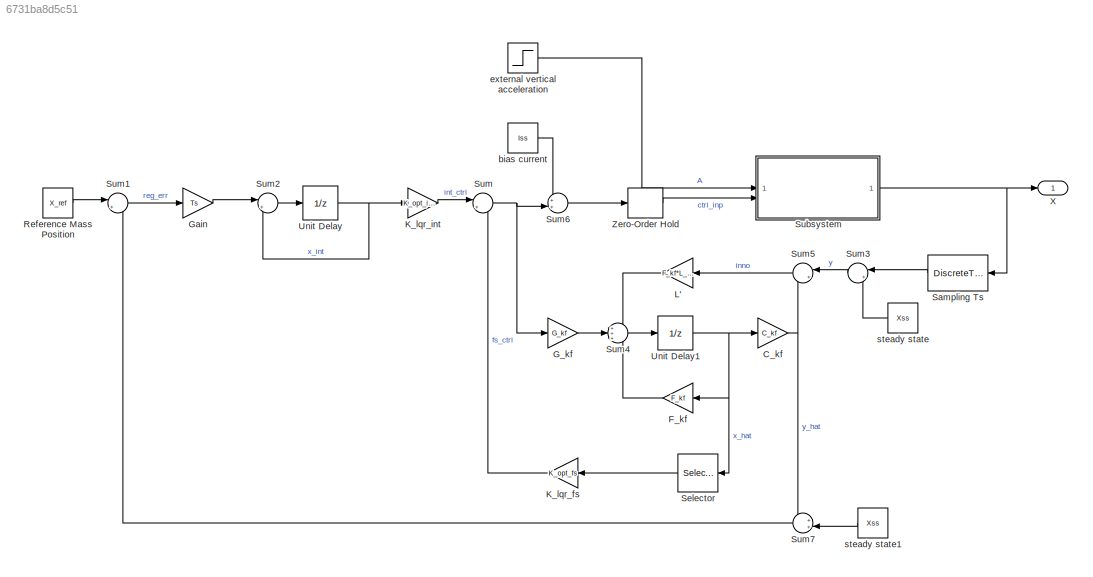
MODEL slx_6731ba8d5c51
KIND model
CONFIG AbsTol = auto
CONFIG EnableMultiTasking = off
CONFIG FixedStep = STEP_SIZE
CONFIG MaxStep = auto
CONFIG MinStep = auto
CONFIG RelTol = 1e-3
CONFIG SampleTimeConstraint = Unconstrained
CONFIG SolverName = ode4
CONFIG StartTime = 0.0
CONFIG StopTime = SIM_TIME
BLOCK [Gain] C_kf
  Gain = C_kf
  Multiplication = Matrix(K*u) (u vector)
BLOCK [Gain] F_kf
  Gain = F_kf
  Multiplication = Matrix(K*u) (u vector)
BLOCK [Gain] G_kf
  Gain = G_kf
  Multiplication = Matrix(K*u) (u vector)
BLOCK [Gain] Gain
  Gain = Ts
BLOCK [Gain] K_lqr_fs
  Gain = K_opt_fs
  Multiplication = Matrix(K*u) (u vector)
BLOCK [Gain] K_lqr_int
  Gain = K_opt_integral
  Multiplication = Matrix(K*u) (u vector)
BLOCK [Gain] L'
  Gain = F_kf*L_KF
  Multiplication = Matrix(K*u) (u vector)
BLOCK [Constant] Reference Mass Position
  Value = X_ref
BLOCK [DiscreteTransferFcn] Sampling Ts
  Denominator = [1]
  InputPortMap = u0
  SampleTime = Ts
BLOCK [Selector] Selector
  IndexOptions = Index vector (dialog)
  Indices = [1 2]
  InputPortWidth = 3
  OutputSizes = 1
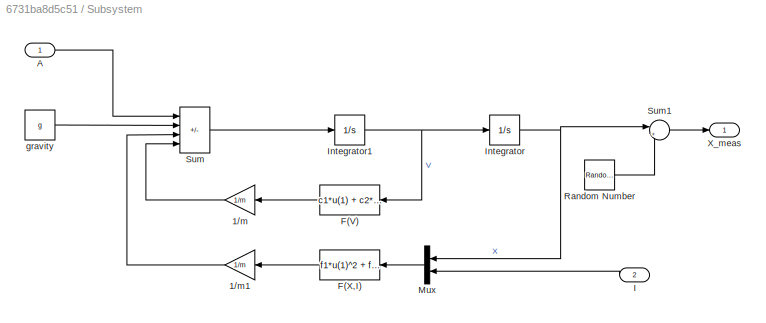
BLOCK [SubSystem] Subsystem
BLOCK [Gain] Subsystem/1//m
  Gain = 1/m
BLOCK [Gain] Subsystem/1//m1
  Gain = 1/m
BLOCK [Inport] Subsystem/A
BLOCK [Fcn] Subsystem/F(V)
  Expr = c1*u(1) + c2*u(1)*abs(u(1))
BLOCK [Fcn] Subsystem/F(X,I)
  Expr = f1*u(1)^2 + f2*u(1)*u(2) - f3*u(1) + f4*u(2)^2 + f5*u(2) - f6
BLOCK [Inport] Subsystem/I
  Port = 2
BLOCK [Integrator] Subsystem/Integrator
  InitialCondition = x0(1)
  Priority = 1
BLOCK [Integrator] Subsystem/Integrator1
  InitialCondition = x0(2)
  Priority = 2
BLOCK [Mux] Subsystem/Mux
  DisplayOption = bar
  Inputs = 2
BLOCK [RandomNumber] Subsystem/Random Number
  SampleTime = Ts
  Seed = 318569
  Variance = Vw
BLOCK [Sum] Subsystem/Sum
  IconShape = rectangular
  Inputs = +-+-
BLOCK [Sum] Subsystem/Sum1
  Inputs = |++
BLOCK [Outport] Subsystem/X_meas
  VectorParamsAs1DForOutWhenUnconnected = off
BLOCK [Constant] Subsystem/gravity
  Value = g
BLOCK [Sum] Sum
  Inputs = |+-
BLOCK [Sum] Sum1
  Inputs = |+-
BLOCK [Sum] Sum2
  Inputs = |++
BLOCK [Sum] Sum3
  Inputs = |+-
BLOCK [Sum] Sum4
  Inputs = +++
BLOCK [Sum] Sum5
  Inputs = |+-
BLOCK [Sum] Sum6
  Inputs = ++|
BLOCK [Sum] Sum7
  Inputs = ++|
BLOCK [UnitDelay] Unit Delay
  HasFrameUpgradeWarning = on
  InitialCondition = x0_int
  SampleTime = Ts
BLOCK [UnitDelay] Unit Delay1
  HasFrameUpgradeWarning = on
  InitialCondition = x0_hat
  SampleTime = Ts
BLOCK [Outport] X
  VectorParamsAs1DForOutWhenUnconnected = off
BLOCK [ZeroOrderHold] Zero-Order Hold
  SampleTime = Ts
BLOCK [Constant] bias current
  Value = Iss
BLOCK [Step] external vertical acceleration
  After = A1
  Before = A0
  SampleTime = 0
  Time = STEP_TIME
BLOCK [Constant] steady state
  Value = Xss
BLOCK [Constant] steady state1
  Value = Xss
NET C_kf:1 -> Sum5:2, Sum7:1
LINE F_kf:1 -> Sum4:3
LINE G_kf:1 -> Sum4:2
LINE Gain:1 -> Sum2:1
LINE K_lqr_fs:1 -> Sum:2
LINE K_lqr_int:1 -> Sum:1
LINE L':1 -> Sum4:1
LINE Reference Mass Position:1 -> Sum1:1
LINE Sampling Ts:1 -> Sum3:1
LINE Selector:1 -> K_lqr_fs:1
LINE Subsystem/1//m1:1 -> Subsystem/Sum:3
LINE Subsystem/1//m:1 -> Subsystem/Sum:4
LINE Subsystem/A:1 -> Subsystem/Sum:1
LINE Subsystem/F(V):1 -> Subsystem/1//m:1
LINE Subsystem/F(X,I):1 -> Subsystem/1//m1:1
LINE Subsystem/I:1 -> Subsystem/Mux:2
NET Subsystem/Integrator1:1 -> Subsystem/F(V):1, Subsystem/Integrator:1
NET Subsystem/Integrator:1 -> Subsystem/Mux:1, Subsystem/Sum1:1
LINE Subsystem/Mux:1 -> Subsystem/F(X,I):1
LINE Subsystem/Random Number:1 -> Subsystem/Sum1:2
LINE Subsystem/Sum1:1 -> Subsystem/X_meas:1
LINE Subsystem/Sum:1 -> Subsystem/Integrator1:1
LINE Subsystem/gravity:1 -> Subsystem/Sum:2
NET Subsystem:1 -> Sampling Ts:1, X:1
LINE Sum1:1 -> Gain:1
LINE Sum2:1 -> Unit Delay:1
LINE Sum3:1 -> Sum5:1
LINE Sum4:1 -> Unit Delay1:1
LINE Sum5:1 -> L':1
LINE Sum6:1 -> Zero-Order Hold:1
LINE Sum7:1 -> Sum1:2
NET Sum:1 -> G_kf:1, Sum6:2
NET Unit Delay1:1 -> C_kf:1, F_kf:1, Selector:1
NET Unit Delay:1 -> K_lqr_int:1, Sum2:2
LINE Zero-Order Hold:1 -> Subsystem:2
LINE bias current:1 -> Sum6:1
LINE external vertical acceleration:1 -> Subsystem:1
LINE steady state1:1 -> Sum7:2
LINE steady state:1 -> Sum3:2
note: NET lines group one-source signal fan-out (src -> all destinations, sorted); 1:1 wires keep LINE
